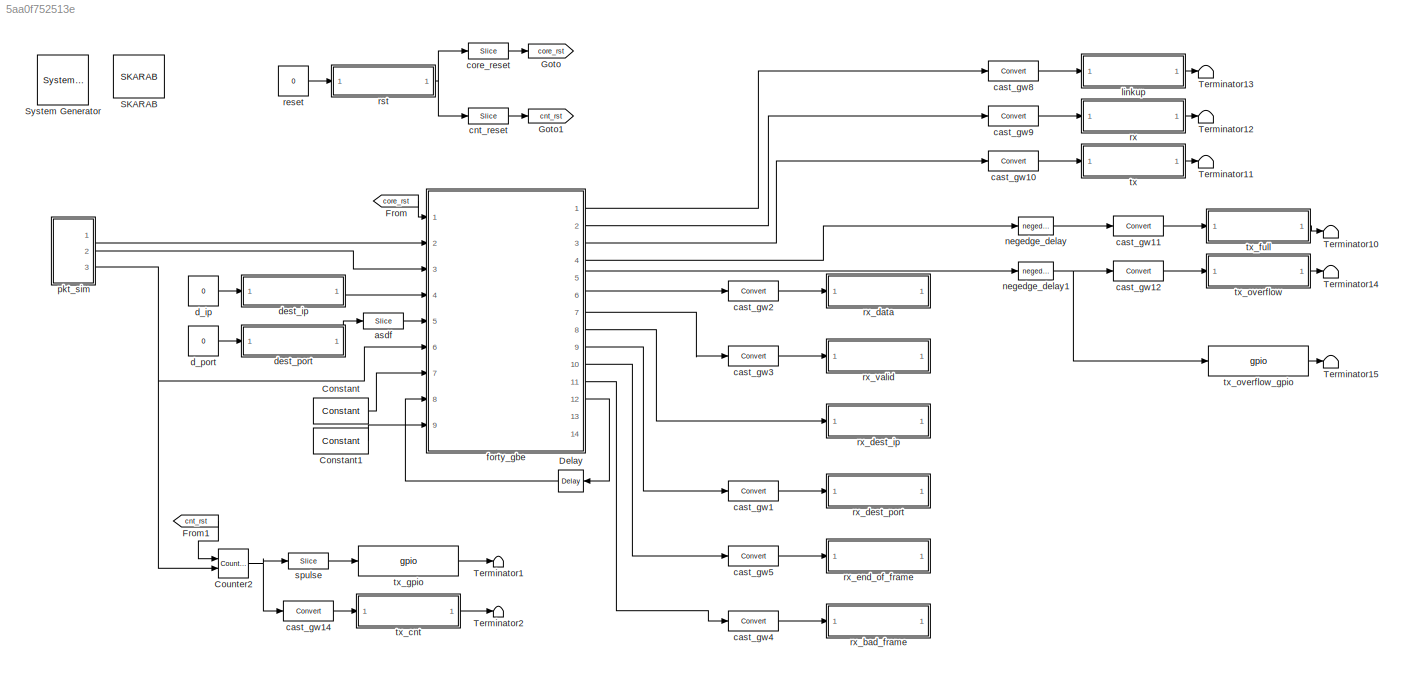
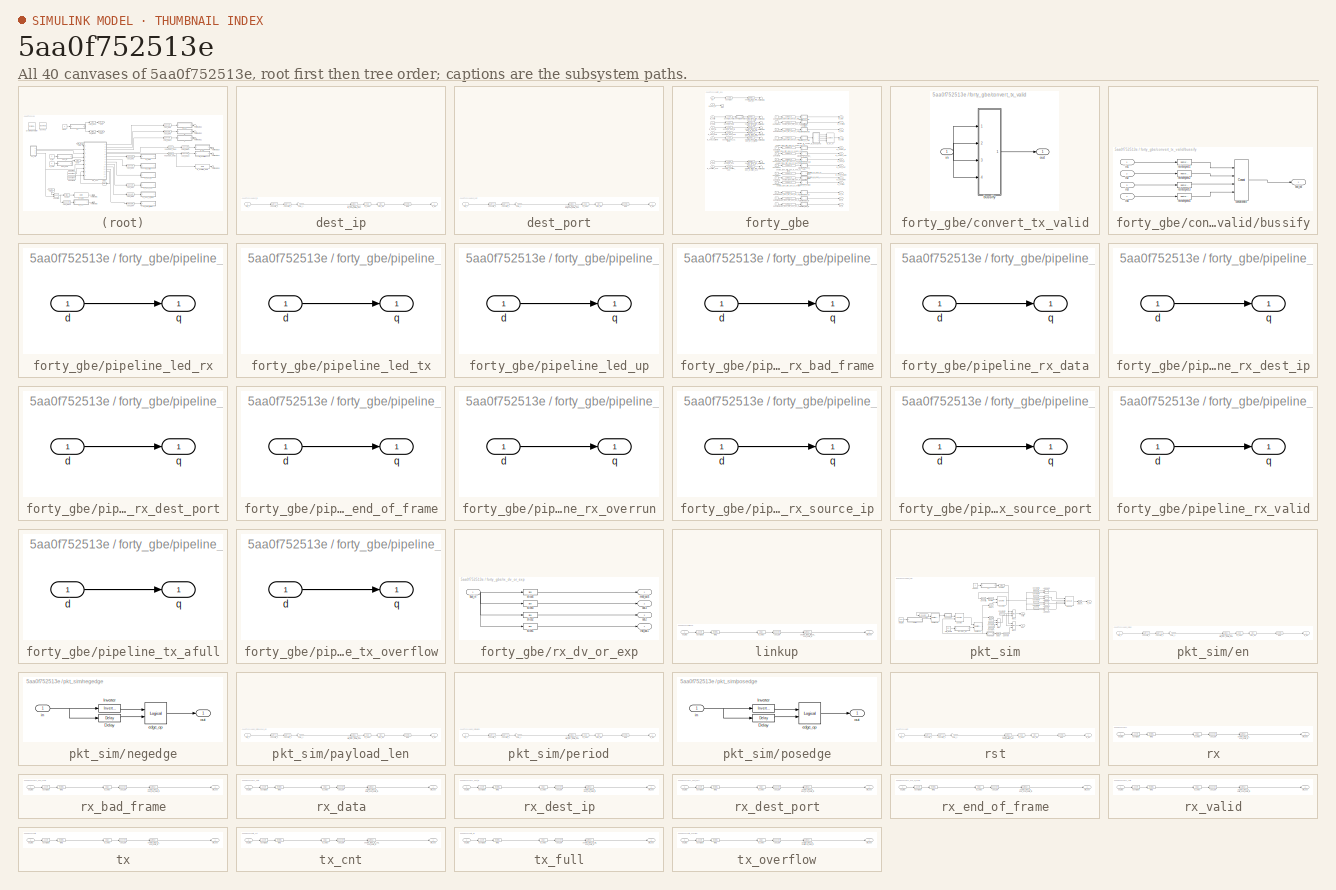
[diagram: thumbnail index - all 40 canvases of the model, root first then tree order]
MODEL slx_5aa0f752513e
KIND model
CONFIG AbsTol = auto
CONFIG EnableMultiTasking = off
CONFIG FixedStep = auto
CONFIG MaxStep = auto
CONFIG MinStep = auto
CONFIG RelTol = 1e-3
CONFIG SampleTimeConstraint = Unconstrained
CONFIG Solver = VariableStepDiscrete
CONFIG SolverName = VariableStepDiscrete
CONFIG StartTime = 0.0
CONFIG StopTime = 50000
BLOCK [Reference]  System Generator  REF=xbsIndex_r4/ System Generator
  AttributesFormatString = System\nGenerator
  Ports = []
  SourceBlock = xbsIndex_r4/ System Generator
  SourceType = Xilinx System Generator Block
  Tag = genX
  UserDataPersistent = on
BLOCK [Reference] Constant  REF=xbsIndex_r4/Constant
  Ports = [0, 1]
  SourceBlock = xbsIndex_r4/Constant
  SourceType = Xilinx Constant Block Block
BLOCK [Reference] Constant1  REF=xbsIndex_r4/Constant
  Ports = [0, 1]
  SourceBlock = xbsIndex_r4/Constant
  SourceType = Xilinx Constant Block Block
BLOCK [Reference] Counter2  REF=xbsIndex_r4/Counter
  Ports = [2, 1]
  SourceBlock = xbsIndex_r4/Counter
  SourceType = Xilinx Counter Block
BLOCK [Reference] Delay  REF=xbsIndex_r4/Delay
  Ports = [1, 1]
  SourceBlock = xbsIndex_r4/Delay
  SourceType = Xilinx Delay Block
BLOCK [From] From
  GotoTag = core_rst
BLOCK [From] From1
  GotoTag = cnt_rst
BLOCK [Goto] Goto
  GotoTag = core_rst
BLOCK [Goto] Goto1
  GotoTag = cnt_rst
BLOCK [Reference] SKARAB  REF=xps_library/Platforms/SKARAB  (lib defined in mdl_00b5cec29cd0, mdl_02ab6ecaa3d1, +5 more)
  Ports = []
  SourceBlock = xps_library/Platforms/SKARAB
  SourceProductName = CASPER XPS Blockset
  SourceType = xsg core config
  Tag = xps:xsg
BLOCK [Terminator] Terminator1
BLOCK [Terminator] Terminator10
BLOCK [Terminator] Terminator11
BLOCK [Terminator] Terminator12
BLOCK [Terminator] Terminator13
BLOCK [Terminator] Terminator14
BLOCK [Terminator] Terminator15
BLOCK [Terminator] Terminator2
BLOCK [Reference] asdf  REF=xbsIndex_r4/Slice
  Ports = [1, 1]
  SourceBlock = xbsIndex_r4/Slice
  SourceType = Xilinx Bit Slice Extractor Block
BLOCK [Reference] cast_gw1  REF=xbsIndex_r4/Convert
  Ports = [1, 1]
  SourceBlock = xbsIndex_r4/Convert
  SourceType = Xilinx Type Converter Block
BLOCK [Reference] cast_gw10  REF=xbsIndex_r4/Convert
  Ports = [1, 1]
  SourceBlock = xbsIndex_r4/Convert
  SourceType = Xilinx Type Converter Block
BLOCK [Reference] cast_gw11  REF=xbsIndex_r4/Convert
  Ports = [1, 1]
  SourceBlock = xbsIndex_r4/Convert
  SourceType = Xilinx Type Converter Block
BLOCK [Reference] cast_gw12  REF=xbsIndex_r4/Convert
  Ports = [1, 1]
  SourceBlock = xbsIndex_r4/Convert
  SourceType = Xilinx Type Converter Block
BLOCK [Reference] cast_gw14  REF=xbsIndex_r4/Convert
  Ports = [1, 1]
  SourceBlock = xbsIndex_r4/Convert
  SourceType = Xilinx Type Converter Block
BLOCK [Reference] cast_gw2  REF=xbsIndex_r4/Convert
  Ports = [1, 1]
  SourceBlock = xbsIndex_r4/Convert
  SourceType = Xilinx Type Converter Block
BLOCK [Reference] cast_gw3  REF=xbsIndex_r4/Convert
  Ports = [1, 1]
  SourceBlock = xbsIndex_r4/Convert
  SourceType = Xilinx Type Converter Block
BLOCK [Reference] cast_gw4  REF=xbsIndex_r4/Convert
  Ports = [1, 1]
  SourceBlock = xbsIndex_r4/Convert
  SourceType = Xilinx Type Converter Block
BLOCK [Reference] cast_gw5  REF=xbsIndex_r4/Convert
  Ports = [1, 1]
  SourceBlock = xbsIndex_r4/Convert
  SourceType = Xilinx Type Converter Block
BLOCK [Reference] cast_gw8  REF=xbsIndex_r4/Convert
  Ports = [1, 1]
  SourceBlock = xbsIndex_r4/Convert
  SourceType = Xilinx Type Converter Block
BLOCK [Reference] cast_gw9  REF=xbsIndex_r4/Convert
  Ports = [1, 1]
  SourceBlock = xbsIndex_r4/Convert
  SourceType = Xilinx Type Converter Block
BLOCK [Reference] cnt_reset  REF=xbsIndex_r4/Slice
  Ports = [1, 1]
  SourceBlock = xbsIndex_r4/Slice
  SourceType = Xilinx Bit Slice Extractor Block
BLOCK [Reference] core_reset  REF=xbsIndex_r4/Slice
  Ports = [1, 1]
  SourceBlock = xbsIndex_r4/Slice
  SourceType = Xilinx Bit Slice Extractor Block
BLOCK [Constant] d_ip
  Value = 0
BLOCK [Constant] d_port
  Value = 0
BLOCK [SubSystem] dest_ip
  AncestorBlock = xps_library/Memory/software_register
  AttributesFormatString = 1input:uf32.0 = 32 bits
  Ports = [1, 1]
  RequestExecContextInheritance = off
  Tag = xps:sw_reg
BLOCK [DataTypeConversion] dest_ip/convert1_1
  LockScale = on
  OutDataTypeStr = fixdt('ufix32_En0')
  RndMeth = Floor
  SaturateOnIntegerOverflow = off
BLOCK [DataTypeConversion] dest_ip/convert2_1
  ConvertRealWorld = Stored Integer (SI)
  LockScale = on
  OutDataTypeStr = fixdt('ufix32_En0')
  RndMeth = Floor
  SaturateOnIntegerOverflow = off
BLOCK [Gain] dest_ip/gain_1
  OutDataTypeStr = Inherit: Inherit via internal rule
  ParamDataTypeStr = Inherit: Inherit via internal rule
  SaturateOnIntegerOverflow = off
BLOCK [Outport] dest_ip/in_reg
  IconDisplay = Port number
BLOCK [Reference] dest_ip/io_delay  REF=xbsIndex_r4/Delay
  Ports = [1, 1]
  SourceBlock = xbsIndex_r4/Delay
  SourceType = Xilinx Delay Block
BLOCK [Reference] dest_ip/reint1  REF=xbsIndex_r4/Reinterpret
  Ports = [1, 1]
  SourceBlock = xbsIndex_r4/Reinterpret
  SourceType = Xilinx Type Reinterpreter Block
BLOCK [Inport] dest_ip/sim_1
  IconDisplay = Port number
BLOCK [Reference] dest_ip/skarab_fgbe_dest_ip_user_data_out  REF=xbsIndex_r4/Gateway In
  Ports = [1, 1]
  SourceBlock = xbsIndex_r4/Gateway In
  SourceType = Xilinx Gateway In Block
BLOCK [Reference] dest_ip/slice_reg  REF=xbsIndex_r4/Slice
  Ports = [1, 1]
  SourceBlock = xbsIndex_r4/Slice
  SourceType = Xilinx Bit Slice Extractor Block
BLOCK [SubSystem] dest_port
  AncestorBlock = xps_library/Memory/software_register
  AttributesFormatString = 1input:uf32.0 = 32 bits
  Ports = [1, 1]
  RequestExecContextInheritance = off
  Tag = xps:sw_reg
BLOCK [DataTypeConversion] dest_port/convert1_1
  LockScale = on
  OutDataTypeStr = fixdt('ufix32_En0')
  RndMeth = Floor
  SaturateOnIntegerOverflow = off
BLOCK [DataTypeConversion] dest_port/convert2_1
  ConvertRealWorld = Stored Integer (SI)
  LockScale = on
  OutDataTypeStr = fixdt('ufix32_En0')
  RndMeth = Floor
  SaturateOnIntegerOverflow = off
BLOCK [Gain] dest_port/gain_1
  OutDataTypeStr = Inherit: Inherit via internal rule
  ParamDataTypeStr = Inherit: Inherit via internal rule
  SaturateOnIntegerOverflow = off
BLOCK [Outport] dest_port/in_reg
  IconDisplay = Port number
BLOCK [Reference] dest_port/io_delay  REF=xbsIndex_r4/Delay
  Ports = [1, 1]
  SourceBlock = xbsIndex_r4/Delay
  SourceType = Xilinx Delay Block
BLOCK [Reference] dest_port/reint1  REF=xbsIndex_r4/Reinterpret
  Ports = [1, 1]
  SourceBlock = xbsIndex_r4/Reinterpret
  SourceType = Xilinx Type Reinterpreter Block
BLOCK [Inport] dest_port/sim_1
  IconDisplay = Port number
BLOCK [Reference] dest_port/skarab_fgbe_dest_port_user_data_out  REF=xbsIndex_r4/Gateway In
  Ports = [1, 1]
  SourceBlock = xbsIndex_r4/Gateway In
  SourceType = Xilinx Gateway In Block
BLOCK [Reference] dest_port/slice_reg  REF=xbsIndex_r4/Slice
  Ports = [1, 1]
  SourceBlock = xbsIndex_r4/Slice
  SourceType = Xilinx Bit Slice Extractor Block
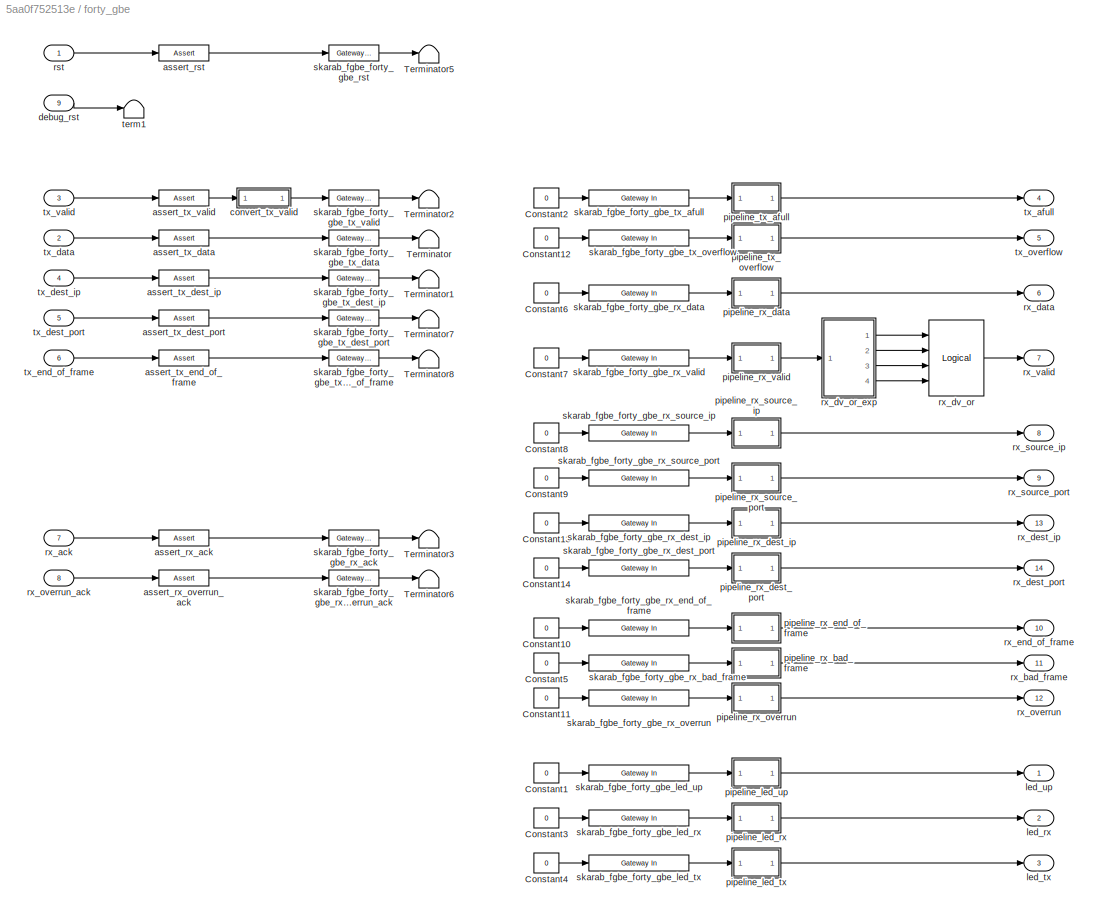
BLOCK [SubSystem] forty_gbe
  AncestorBlock = xps_library/IO/forty_gbe
  AttributesFormatString = incoming_latency=3
  Ports = [9, 14]
  RequestExecContextInheritance = off
  Tag = xps:forty_gbe
BLOCK [Constant] forty_gbe/Constant1
  Value = 0
BLOCK [Constant] forty_gbe/Constant10
  Value = 0
BLOCK [Constant] forty_gbe/Constant11
  Value = 0
BLOCK [Constant] forty_gbe/Constant12
  Value = 0
BLOCK [Constant] forty_gbe/Constant13
  Value = 0
BLOCK [Constant] forty_gbe/Constant14
  Value = 0
BLOCK [Constant] forty_gbe/Constant2
  Value = 0
BLOCK [Constant] forty_gbe/Constant3
  Value = 0
BLOCK [Constant] forty_gbe/Constant4
  Value = 0
BLOCK [Constant] forty_gbe/Constant5
  Value = 0
BLOCK [Constant] forty_gbe/Constant6
  Value = 0
BLOCK [Constant] forty_gbe/Constant7
  Value = 0
BLOCK [Constant] forty_gbe/Constant8
  Value = 0
BLOCK [Constant] forty_gbe/Constant9
  Value = 0
BLOCK [Terminator] forty_gbe/Terminator
BLOCK [Terminator] forty_gbe/Terminator1
BLOCK [Terminator] forty_gbe/Terminator2
BLOCK [Terminator] forty_gbe/Terminator3
BLOCK [Terminator] forty_gbe/Terminator5
BLOCK [Terminator] forty_gbe/Terminator6
BLOCK [Terminator] forty_gbe/Terminator7
BLOCK [Terminator] forty_gbe/Terminator8
BLOCK [Reference] forty_gbe/assert_rst  REF=xbsIndex_r4/Assert
  Ports = [1, 1]
  SourceBlock = xbsIndex_r4/Assert
  SourceType = Xilinx Assert Block
BLOCK [Reference] forty_gbe/assert_rx_ack  REF=xbsIndex_r4/Assert
  Ports = [1, 1]
  SourceBlock = xbsIndex_r4/Assert
  SourceType = Xilinx Assert Block
BLOCK [Reference] forty_gbe/assert_rx_overrun_ack  REF=xbsIndex_r4/Assert
  Ports = [1, 1]
  SourceBlock = xbsIndex_r4/Assert
  SourceType = Xilinx Assert Block
BLOCK [Reference] forty_gbe/assert_tx_data  REF=xbsIndex_r4/Assert
  Ports = [1, 1]
  SourceBlock = xbsIndex_r4/Assert
  SourceType = Xilinx Assert Block
BLOCK [Reference] forty_gbe/assert_tx_dest_ip  REF=xbsIndex_r4/Assert
  Ports = [1, 1]
  SourceBlock = xbsIndex_r4/Assert
  SourceType = Xilinx Assert Block
BLOCK [Reference] forty_gbe/assert_tx_dest_port  REF=xbsIndex_r4/Assert
  Ports = [1, 1]
  SourceBlock = xbsIndex_r4/Assert
  SourceType = Xilinx Assert Block
BLOCK [Reference] forty_gbe/assert_tx_end_of_frame  REF=xbsIndex_r4/Assert
  Ports = [1, 1]
  SourceBlock = xbsIndex_r4/Assert
  SourceType = Xilinx Assert Block
BLOCK [Reference] forty_gbe/assert_tx_valid  REF=xbsIndex_r4/Assert
  Ports = [1, 1]
  SourceBlock = xbsIndex_r4/Assert
  SourceType = Xilinx Assert Block
BLOCK [SubSystem] forty_gbe/convert_tx_valid
  AncestorBlock = casper_library_bus/bus_replicate
  Ports = [1, 1]
  RequestExecContextInheritance = off
  UserDataPersistent = on
BLOCK [SubSystem] forty_gbe/convert_tx_valid/bussify
  AncestorBlock = casper_library_flow_control/bus_create
  Ports = [4, 1]
  RequestExecContextInheritance = off
  UserDataPersistent = on
BLOCK [Outport] forty_gbe/convert_tx_valid/bussify/bus_out
  IconDisplay = Port number
BLOCK [Reference] forty_gbe/convert_tx_valid/bussify/concatenate  REF=xbsIndex_r4/Concat
  Ports = [4, 1]
  SourceBlock = xbsIndex_r4/Concat
  SourceType = Xilinx Bus Concatenator Block
BLOCK [Inport] forty_gbe/convert_tx_valid/bussify/in1
  IconDisplay = Port number
BLOCK [Inport] forty_gbe/convert_tx_valid/bussify/in2
  IconDisplay = Port number
  Port = 2
BLOCK [Inport] forty_gbe/convert_tx_valid/bussify/in3
  IconDisplay = Port number
  Port = 3
BLOCK [Inport] forty_gbe/convert_tx_valid/bussify/in4
  IconDisplay = Port number
  Port = 4
BLOCK [Reference] forty_gbe/convert_tx_valid/bussify/reinterpret1  REF=xbsIndex_r4/Reinterpret
  Ports = [1, 1]
  SourceBlock = xbsIndex_r4/Reinterpret
  SourceType = Xilinx Type Reinterpreter Block
BLOCK [Reference] forty_gbe/convert_tx_valid/bussify/reinterpret2  REF=xbsIndex_r4/Reinterpret
  Ports = [1, 1]
  SourceBlock = xbsIndex_r4/Reinterpret
  SourceType = Xilinx Type Reinterpreter Block
BLOCK [Reference] forty_gbe/convert_tx_valid/bussify/reinterpret3  REF=xbsIndex_r4/Reinterpret
  Ports = [1, 1]
  SourceBlock = xbsIndex_r4/Reinterpret
  SourceType = Xilinx Type Reinterpreter Block
BLOCK [Reference] forty_gbe/convert_tx_valid/bussify/reinterpret4  REF=xbsIndex_r4/Reinterpret
  Ports = [1, 1]
  SourceBlock = xbsIndex_r4/Reinterpret
  SourceType = Xilinx Type Reinterpreter Block
BLOCK [Inport] forty_gbe/convert_tx_valid/in
  IconDisplay = Port number
BLOCK [Outport] forty_gbe/convert_tx_valid/out
  IconDisplay = Port number
BLOCK [Inport] forty_gbe/debug_rst
  IconDisplay = Port number
  Port = 9
BLOCK [Outport] forty_gbe/led_rx
  IconDisplay = Port number
  Port = 2
BLOCK [Outport] forty_gbe/led_tx
  IconDisplay = Port number
  Port = 3
BLOCK [Outport] forty_gbe/led_up
  IconDisplay = Port number
BLOCK [SubSystem] forty_gbe/pipeline_led_rx
  AncestorBlock = casper_library_delays/pipeline
  AttributesFormatString = Latency = %<latency>
  Ports = [1, 1]
  RequestExecContextInheritance = off
  UserDataPersistent = on
BLOCK [Inport] forty_gbe/pipeline_led_rx/d
  IconDisplay = Port number
BLOCK [Outport] forty_gbe/pipeline_led_rx/q
  IconDisplay = Port number
BLOCK [SubSystem] forty_gbe/pipeline_led_tx
  AncestorBlock = casper_library_delays/pipeline
  AttributesFormatString = Latency = %<latency>
  Ports = [1, 1]
  RequestExecContextInheritance = off
  UserDataPersistent = on
BLOCK [Inport] forty_gbe/pipeline_led_tx/d
  IconDisplay = Port number
BLOCK [Outport] forty_gbe/pipeline_led_tx/q
  IconDisplay = Port number
BLOCK [SubSystem] forty_gbe/pipeline_led_up
  AncestorBlock = casper_library_delays/pipeline
  AttributesFormatString = Latency = %<latency>
  Ports = [1, 1]
  RequestExecContextInheritance = off
  UserDataPersistent = on
BLOCK [Inport] forty_gbe/pipeline_led_up/d
  IconDisplay = Port number
BLOCK [Outport] forty_gbe/pipeline_led_up/q
  IconDisplay = Port number
BLOCK [SubSystem] forty_gbe/pipeline_rx_bad_frame
  AncestorBlock = casper_library_delays/pipeline
  AttributesFormatString = Latency = %<latency>
  Ports = [1, 1]
  RequestExecContextInheritance = off
  UserDataPersistent = on
BLOCK [Inport] forty_gbe/pipeline_rx_bad_frame/d
  IconDisplay = Port number
BLOCK [Outport] forty_gbe/pipeline_rx_bad_frame/q
  IconDisplay = Port number
BLOCK [SubSystem] forty_gbe/pipeline_rx_data
  AncestorBlock = casper_library_delays/pipeline
  AttributesFormatString = Latency = %<latency>
  Ports = [1, 1]
  RequestExecContextInheritance = off
  UserDataPersistent = on
BLOCK [Inport] forty_gbe/pipeline_rx_data/d
  IconDisplay = Port number
BLOCK [Outport] forty_gbe/pipeline_rx_data/q
  IconDisplay = Port number
BLOCK [SubSystem] forty_gbe/pipeline_rx_dest_ip
  AncestorBlock = casper_library_delays/pipeline
  AttributesFormatString = Latency = %<latency>
  Ports = [1, 1]
  RequestExecContextInheritance = off
  UserDataPersistent = on
BLOCK [Inport] forty_gbe/pipeline_rx_dest_ip/d
  IconDisplay = Port number
BLOCK [Outport] forty_gbe/pipeline_rx_dest_ip/q
  IconDisplay = Port number
BLOCK [SubSystem] forty_gbe/pipeline_rx_dest_port
  AncestorBlock = casper_library_delays/pipeline
  AttributesFormatString = Latency = %<latency>
  Ports = [1, 1]
  RequestExecContextInheritance = off
  UserDataPersistent = on
BLOCK [Inport] forty_gbe/pipeline_rx_dest_port/d
  IconDisplay = Port number
BLOCK [Outport] forty_gbe/pipeline_rx_dest_port/q
  IconDisplay = Port number
BLOCK [SubSystem] forty_gbe/pipeline_rx_end_of_frame
  AncestorBlock = casper_library_delays/pipeline
  AttributesFormatString = Latency = %<latency>
  Ports = [1, 1]
  RequestExecContextInheritance = off
  UserDataPersistent = on
BLOCK [Inport] forty_gbe/pipeline_rx_end_of_frame/d
  IconDisplay = Port number
BLOCK [Outport] forty_gbe/pipeline_rx_end_of_frame/q
  IconDisplay = Port number
BLOCK [SubSystem] forty_gbe/pipeline_rx_overrun
  AncestorBlock = casper_library_delays/pipeline
  AttributesFormatString = Latency = %<latency>
  Ports = [1, 1]
  RequestExecContextInheritance = off
  UserDataPersistent = on
BLOCK [Inport] forty_gbe/pipeline_rx_overrun/d
  IconDisplay = Port number
BLOCK [Outport] forty_gbe/pipeline_rx_overrun/q
  IconDisplay = Port number
BLOCK [SubSystem] forty_gbe/pipeline_rx_source_ip
  AncestorBlock = casper_library_delays/pipeline
  AttributesFormatString = Latency = %<latency>
  Ports = [1, 1]
  RequestExecContextInheritance = off
  UserDataPersistent = on
BLOCK [Inport] forty_gbe/pipeline_rx_source_ip/d
  IconDisplay = Port number
BLOCK [Outport] forty_gbe/pipeline_rx_source_ip/q
  IconDisplay = Port number
BLOCK [SubSystem] forty_gbe/pipeline_rx_source_port
  AncestorBlock = casper_library_delays/pipeline
  AttributesFormatString = Latency = %<latency>
  Ports = [1, 1]
  RequestExecContextInheritance = off
  UserDataPersistent = on
BLOCK [Inport] forty_gbe/pipeline_rx_source_port/d
  IconDisplay = Port number
BLOCK [Outport] forty_gbe/pipeline_rx_source_port/q
  IconDisplay = Port number
BLOCK [SubSystem] forty_gbe/pipeline_rx_valid
  AncestorBlock = casper_library_delays/pipeline
  AttributesFormatString = Latency = %<latency>
  Ports = [1, 1]
  RequestExecContextInheritance = off
  UserDataPersistent = on
BLOCK [Inport] forty_gbe/pipeline_rx_valid/d
  IconDisplay = Port number
BLOCK [Outport] forty_gbe/pipeline_rx_valid/q
  IconDisplay = Port number
BLOCK [SubSystem] forty_gbe/pipeline_tx_afull
  AncestorBlock = casper_library_delays/pipeline
  AttributesFormatString = Latency = %<latency>
  Ports = [1, 1]
  RequestExecContextInheritance = off
  UserDataPersistent = on
BLOCK [Inport] forty_gbe/pipeline_tx_afull/d
  IconDisplay = Port number
BLOCK [Outport] forty_gbe/pipeline_tx_afull/q
  IconDisplay = Port number
BLOCK [SubSystem] forty_gbe/pipeline_tx_overflow
  AncestorBlock = casper_library_delays/pipeline
  AttributesFormatString = Latency = %<latency>
  Ports = [1, 1]
  RequestExecContextInheritance = off
  UserDataPersistent = on
BLOCK [Inport] forty_gbe/pipeline_tx_overflow/d
  IconDisplay = Port number
BLOCK [Outport] forty_gbe/pipeline_tx_overflow/q
  IconDisplay = Port number
BLOCK [Inport] forty_gbe/rst
  IconDisplay = Port number
BLOCK [Inport] forty_gbe/rx_ack
  IconDisplay = Port number
  Port = 7
BLOCK [Outport] forty_gbe/rx_bad_frame
  IconDisplay = Port number
  Port = 11
BLOCK [Outport] forty_gbe/rx_data
  IconDisplay = Port number
  Port = 6
BLOCK [Outport] forty_gbe/rx_dest_ip
  IconDisplay = Port number
  Port = 13
BLOCK [Outport] forty_gbe/rx_dest_port
  IconDisplay = Port number
  Port = 14
BLOCK [Reference] forty_gbe/rx_dv_or  REF=xbsIndex_r4/Logical
  Ports = [4, 1]
  SourceBlock = xbsIndex_r4/Logical
  SourceType = Xilinx Logical Block Block
BLOCK [SubSystem] forty_gbe/rx_dv_or_exp
  AncestorBlock = casper_library_flow_control/bus_expand
  AttributesFormatString = 4 outputs
  Ports = [1, 4]
  RequestExecContextInheritance = off
  UserDataPersistent = on
BLOCK [Inport] forty_gbe/rx_dv_or_exp/bus_in
  IconDisplay = Port number
BLOCK [Outport] forty_gbe/rx_dv_or_exp/lsb_out1
  IconDisplay = Port number
  Port = 4
BLOCK [Outport] forty_gbe/rx_dv_or_exp/msb_out4
  IconDisplay = Port number
BLOCK [Outport] forty_gbe/rx_dv_or_exp/out2
  IconDisplay = Port number
  Port = 3
BLOCK [Outport] forty_gbe/rx_dv_or_exp/out3
  IconDisplay = Port number
  Port = 2
BLOCK [Reference] forty_gbe/rx_dv_or_exp/slice1  REF=xbsIndex_r4/Slice
  Ports = [1, 1]
  SourceBlock = xbsIndex_r4/Slice
  SourceType = Xilinx Bit Slice Extractor Block
BLOCK [Reference] forty_gbe/rx_dv_or_exp/slice2  REF=xbsIndex_r4/Slice
  Ports = [1, 1]
  SourceBlock = xbsIndex_r4/Slice
  SourceType = Xilinx Bit Slice Extractor Block
BLOCK [Reference] forty_gbe/rx_dv_or_exp/slice3  REF=xbsIndex_r4/Slice
  Ports = [1, 1]
  SourceBlock = xbsIndex_r4/Slice
  SourceType = Xilinx Bit Slice Extractor Block
BLOCK [Reference] forty_gbe/rx_dv_or_exp/slice4  REF=xbsIndex_r4/Slice
  Ports = [1, 1]
  SourceBlock = xbsIndex_r4/Slice
  SourceType = Xilinx Bit Slice Extractor Block
BLOCK [Outport] forty_gbe/rx_end_of_frame
  IconDisplay = Port number
  Port = 10
BLOCK [Outport] forty_gbe/rx_overrun
  IconDisplay = Port number
  Port = 12
BLOCK [Inport] forty_gbe/rx_overrun_ack
  IconDisplay = Port number
  Port = 8
BLOCK [Outport] forty_gbe/rx_source_ip
  IconDisplay = Port number
  Port = 8
BLOCK [Outport] forty_gbe/rx_source_port
  IconDisplay = Port number
  Port = 9
BLOCK [Outport] forty_gbe/rx_valid
  IconDisplay = Port number
  Port = 7
BLOCK [Reference] forty_gbe/skarab_fgbe_forty_gbe_led_rx  REF=xbsIndex_r4/Gateway In
  Ports = [1, 1]
  SourceBlock = xbsIndex_r4/Gateway In
  SourceType = Xilinx Gateway In Block
BLOCK [Reference] forty_gbe/skarab_fgbe_forty_gbe_led_tx  REF=xbsIndex_r4/Gateway In
  Ports = [1, 1]
  SourceBlock = xbsIndex_r4/Gateway In
  SourceType = Xilinx Gateway In Block
BLOCK [Reference] forty_gbe/skarab_fgbe_forty_gbe_led_up  REF=xbsIndex_r4/Gateway In
  Ports = [1, 1]
  SourceBlock = xbsIndex_r4/Gateway In
  SourceType = Xilinx Gateway In Block
BLOCK [Reference] forty_gbe/skarab_fgbe_forty_gbe_rst  REF=xbsIndex_r4/Gateway Out
  Ports = [1, 1]
  SourceBlock = xbsIndex_r4/Gateway Out
  SourceType = Xilinx Gateway Out Block
BLOCK [Reference] forty_gbe/skarab_fgbe_forty_gbe_rx_ack  REF=xbsIndex_r4/Gateway Out
  Ports = [1, 1]
  SourceBlock = xbsIndex_r4/Gateway Out
  SourceType = Xilinx Gateway Out Block
BLOCK [Reference] forty_gbe/skarab_fgbe_forty_gbe_rx_bad_frame  REF=xbsIndex_r4/Gateway In
  Ports = [1, 1]
  SourceBlock = xbsIndex_r4/Gateway In
  SourceType = Xilinx Gateway In Block
BLOCK [Reference] forty_gbe/skarab_fgbe_forty_gbe_rx_data  REF=xbsIndex_r4/Gateway In
  Ports = [1, 1]
  SourceBlock = xbsIndex_r4/Gateway In
  SourceType = Xilinx Gateway In Block
BLOCK [Reference] forty_gbe/skarab_fgbe_forty_gbe_rx_dest_ip  REF=xbsIndex_r4/Gateway In
  Ports = [1, 1]
  SourceBlock = xbsIndex_r4/Gateway In
  SourceType = Xilinx Gateway In Block
BLOCK [Reference] forty_gbe/skarab_fgbe_forty_gbe_rx_dest_port  REF=xbsIndex_r4/Gateway In
  Ports = [1, 1]
  SourceBlock = xbsIndex_r4/Gateway In
  SourceType = Xilinx Gateway In Block
BLOCK [Reference] forty_gbe/skarab_fgbe_forty_gbe_rx_end_of_frame  REF=xbsIndex_r4/Gateway In
  Ports = [1, 1]
  SourceBlock = xbsIndex_r4/Gateway In
  SourceType = Xilinx Gateway In Block
BLOCK [Reference] forty_gbe/skarab_fgbe_forty_gbe_rx_overrun  REF=xbsIndex_r4/Gateway In
  Ports = [1, 1]
  SourceBlock = xbsIndex_r4/Gateway In
  SourceType = Xilinx Gateway In Block
BLOCK [Reference] forty_gbe/skarab_fgbe_forty_gbe_rx_overrun_ack  REF=xbsIndex_r4/Gateway Out
  Ports = [1, 1]
  SourceBlock = xbsIndex_r4/Gateway Out
  SourceType = Xilinx Gateway Out Block
BLOCK [Reference] forty_gbe/skarab_fgbe_forty_gbe_rx_source_ip  REF=xbsIndex_r4/Gateway In
  Ports = [1, 1]
  SourceBlock = xbsIndex_r4/Gateway In
  SourceType = Xilinx Gateway In Block
BLOCK [Reference] forty_gbe/skarab_fgbe_forty_gbe_rx_source_port  REF=xbsIndex_r4/Gateway In
  Ports = [1, 1]
  SourceBlock = xbsIndex_r4/Gateway In
  SourceType = Xilinx Gateway In Block
BLOCK [Reference] forty_gbe/skarab_fgbe_forty_gbe_rx_valid  REF=xbsIndex_r4/Gateway In
  Ports = [1, 1]
  SourceBlock = xbsIndex_r4/Gateway In
  SourceType = Xilinx Gateway In Block
BLOCK [Reference] forty_gbe/skarab_fgbe_forty_gbe_tx_afull  REF=xbsIndex_r4/Gateway In
  Ports = [1, 1]
  SourceBlock = xbsIndex_r4/Gateway In
  SourceType = Xilinx Gateway In Block
BLOCK [Reference] forty_gbe/skarab_fgbe_forty_gbe_tx_data  REF=xbsIndex_r4/Gateway Out
  Ports = [1, 1]
  SourceBlock = xbsIndex_r4/Gateway Out
  SourceType = Xilinx Gateway Out Block
BLOCK [Reference] forty_gbe/skarab_fgbe_forty_gbe_tx_dest_ip  REF=xbsIndex_r4/Gateway Out
  Ports = [1, 1]
  SourceBlock = xbsIndex_r4/Gateway Out
  SourceType = Xilinx Gateway Out Block
BLOCK [Reference] forty_gbe/skarab_fgbe_forty_gbe_tx_dest_port  REF=xbsIndex_r4/Gateway Out
  Ports = [1, 1]
  SourceBlock = xbsIndex_r4/Gateway Out
  SourceType = Xilinx Gateway Out Block
BLOCK [Reference] forty_gbe/skarab_fgbe_forty_gbe_tx_end_of_frame  REF=xbsIndex_r4/Gateway Out
  Ports = [1, 1]
  SourceBlock = xbsIndex_r4/Gateway Out
  SourceType = Xilinx Gateway Out Block
BLOCK [Reference] forty_gbe/skarab_fgbe_forty_gbe_tx_overflow  REF=xbsIndex_r4/Gateway In
  Ports = [1, 1]
  SourceBlock = xbsIndex_r4/Gateway In
  SourceType = Xilinx Gateway In Block
BLOCK [Reference] forty_gbe/skarab_fgbe_forty_gbe_tx_valid  REF=xbsIndex_r4/Gateway Out
  Ports = [1, 1]
  SourceBlock = xbsIndex_r4/Gateway Out
  SourceType = Xilinx Gateway Out Block
BLOCK [Terminator] forty_gbe/term1
BLOCK [Outport] forty_gbe/tx_afull
  IconDisplay = Port number
  Port = 4
BLOCK [Inport] forty_gbe/tx_data
  IconDisplay = Port number
  Port = 2
BLOCK [Inport] forty_gbe/tx_dest_ip
  IconDisplay = Port number
  Port = 4
BLOCK [Inport] forty_gbe/tx_dest_port
  IconDisplay = Port number
  Port = 5
BLOCK [Inport] forty_gbe/tx_end_of_frame
  IconDisplay = Port number
  Port = 6
BLOCK [Outport] forty_gbe/tx_overflow
  IconDisplay = Port number
  Port = 5
BLOCK [Inport] forty_gbe/tx_valid
  IconDisplay = Port number
  Port = 3
BLOCK [SubSystem] linkup
  AncestorBlock = xps_library/Memory/software_register
  AttributesFormatString = 1output:uf32.0 = 32 bits
  Ports = [1, 1]
  RequestExecContextInheritance = off
  Tag = xps:sw_reg
BLOCK [Reference] linkup/assert_reg  REF=xbsIndex_r4/Assert
  Ports = [1, 1]
  SourceBlock = xbsIndex_r4/Assert
  SourceType = Xilinx Assert Block
BLOCK [Reference] linkup/cast_gw  REF=xbsIndex_r4/Convert
  Ports = [1, 1]
  SourceBlock = xbsIndex_r4/Convert
  SourceType = Xilinx Type Converter Block
BLOCK [Reference] linkup/io_delay  REF=xbsIndex_r4/Delay
  Ports = [1, 1]
  SourceBlock = xbsIndex_r4/Delay
  SourceType = Xilinx Delay Block
BLOCK [Inport] linkup/out_reg
  IconDisplay = Port number
BLOCK [Reference] linkup/reint1  REF=xbsIndex_r4/Reinterpret
  Ports = [1, 1]
  SourceBlock = xbsIndex_r4/Reinterpret
  SourceType = Xilinx Type Reinterpreter Block
BLOCK [Outport] linkup/sim_out
  IconDisplay = Port number
BLOCK [Reference] linkup/skarab_fgbe_linkup_user_data_in  REF=xbsIndex_r4/Gateway Out
  Ports = [1, 1]
  SourceBlock = xbsIndex_r4/Gateway Out
  SourceType = Xilinx Gateway Out Block
BLOCK [Reference] negedge_delay  REF=casper_library_misc/negedge_delay  (lib defined in mdl_357510c33b49, mdl_57b5f564ae26, +4 more)
  Ports = [1, 1]
  SourceBlock = casper_library_misc/negedge_delay
  SourceProductName = CASPER DSP Blockset
  SourceType = negedge_delay
BLOCK [Reference] negedge_delay1  REF=casper_library_misc/negedge_delay  (lib defined in mdl_357510c33b49, mdl_57b5f564ae26, +4 more)
  Ports = [1, 1]
  SourceBlock = casper_library_misc/negedge_delay
  SourceProductName = CASPER DSP Blockset
  SourceType = negedge_delay
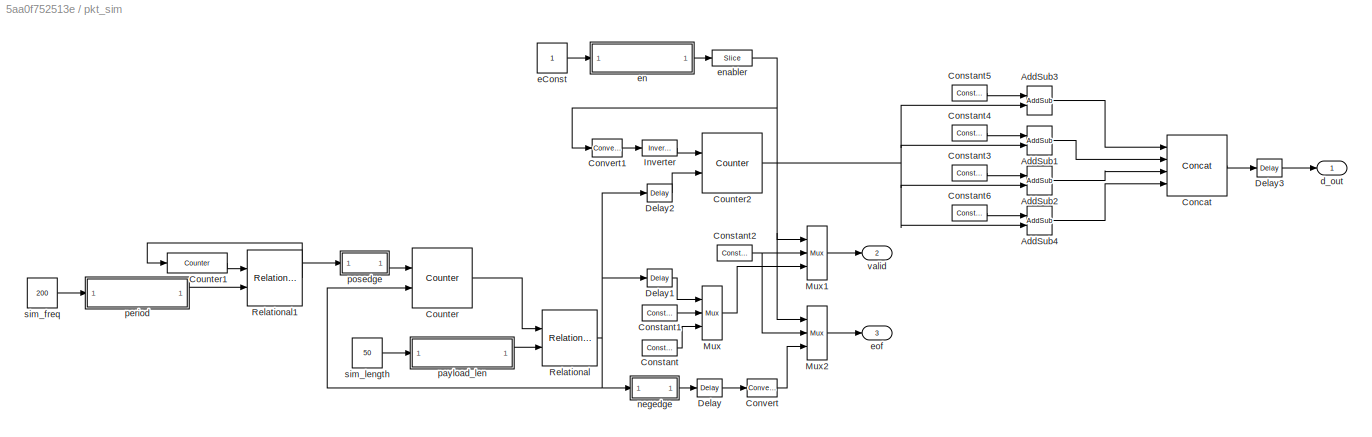
BLOCK [SubSystem] pkt_sim
  Ports = [0, 3]
  RequestExecContextInheritance = off
BLOCK [Reference] pkt_sim/AddSub1  REF=xbsIndex_r4/AddSub
  Ports = [2, 1]
  SourceBlock = xbsIndex_r4/AddSub
  SourceType = Xilinx Adder/Subtracter Block
BLOCK [Reference] pkt_sim/AddSub2  REF=xbsIndex_r4/AddSub
  Ports = [2, 1]
  SourceBlock = xbsIndex_r4/AddSub
  SourceType = Xilinx Adder/Subtracter Block
BLOCK [Reference] pkt_sim/AddSub3  REF=xbsIndex_r4/AddSub
  Ports = [2, 1]
  SourceBlock = xbsIndex_r4/AddSub
  SourceType = Xilinx Adder/Subtracter Block
BLOCK [Reference] pkt_sim/AddSub4  REF=xbsIndex_r4/AddSub
  Ports = [2, 1]
  SourceBlock = xbsIndex_r4/AddSub
  SourceType = Xilinx Adder/Subtracter Block
BLOCK [Reference] pkt_sim/Concat  REF=xbsIndex_r4/Concat
  Ports = [4, 1]
  SourceBlock = xbsIndex_r4/Concat
  SourceType = Xilinx Bus Concatenator Block
BLOCK [Reference] pkt_sim/Constant  REF=xbsIndex_r4/Constant
  Ports = [0, 1]
  SourceBlock = xbsIndex_r4/Constant
  SourceType = Xilinx Constant Block Block
BLOCK [Reference] pkt_sim/Constant1  REF=xbsIndex_r4/Constant
  Ports = [0, 1]
  SourceBlock = xbsIndex_r4/Constant
  SourceType = Xilinx Constant Block Block
BLOCK [Reference] pkt_sim/Constant2  REF=xbsIndex_r4/Constant
  Ports = [0, 1]
  SourceBlock = xbsIndex_r4/Constant
  SourceType = Xilinx Constant Block Block
BLOCK [Reference] pkt_sim/Constant3  REF=xbsIndex_r4/Constant
  Ports = [0, 1]
  SourceBlock = xbsIndex_r4/Constant
  SourceType = Xilinx Constant Block Block
BLOCK [Reference] pkt_sim/Constant4  REF=xbsIndex_r4/Constant
  Ports = [0, 1]
  SourceBlock = xbsIndex_r4/Constant
  SourceType = Xilinx Constant Block Block
BLOCK [Reference] pkt_sim/Constant5  REF=xbsIndex_r4/Constant
  Ports = [0, 1]
  SourceBlock = xbsIndex_r4/Constant
  SourceType = Xilinx Constant Block Block
BLOCK [Reference] pkt_sim/Constant6  REF=xbsIndex_r4/Constant
  Ports = [0, 1]
  SourceBlock = xbsIndex_r4/Constant
  SourceType = Xilinx Constant Block Block
BLOCK [Reference] pkt_sim/Convert  REF=xbsIndex_r4/Convert
  Ports = [1, 1]
  SourceBlock = xbsIndex_r4/Convert
  SourceType = Xilinx Type Converter Block
BLOCK [Reference] pkt_sim/Convert1  REF=xbsIndex_r4/Convert
  Ports = [1, 1]
  SourceBlock = xbsIndex_r4/Convert
  SourceType = Xilinx Type Converter Block
BLOCK [Reference] pkt_sim/Counter  REF=xbsIndex_r4/Counter
  Ports = [2, 1]
  SourceBlock = xbsIndex_r4/Counter
  SourceType = Xilinx Counter Block
BLOCK [Reference] pkt_sim/Counter1  REF=xbsIndex_r4/Counter
  Ports = [1, 1]
  SourceBlock = xbsIndex_r4/Counter
  SourceType = Xilinx Counter Block
BLOCK [Reference] pkt_sim/Counter2  REF=xbsIndex_r4/Counter
  Ports = [2, 1]
  SourceBlock = xbsIndex_r4/Counter
  SourceType = Xilinx Counter Block
BLOCK [Reference] pkt_sim/Delay  REF=xbsIndex_r4/Delay
  Ports = [1, 1]
  SourceBlock = xbsIndex_r4/Delay
  SourceType = Xilinx Delay Block
BLOCK [Reference] pkt_sim/Delay1  REF=xbsIndex_r4/Delay
  Ports = [1, 1]
  SourceBlock = xbsIndex_r4/Delay
  SourceType = Xilinx Delay Block
BLOCK [Reference] pkt_sim/Delay2  REF=xbsIndex_r4/Delay
  Ports = [1, 1]
  SourceBlock = xbsIndex_r4/Delay
  SourceType = Xilinx Delay Block
BLOCK [Reference] pkt_sim/Delay3  REF=xbsIndex_r4/Delay
  Ports = [1, 1]
  SourceBlock = xbsIndex_r4/Delay
  SourceType = Xilinx Delay Block
BLOCK [Reference] pkt_sim/Inverter  REF=xbsIndex_r4/Inverter
  Ports = [1, 1]
  SourceBlock = xbsIndex_r4/Inverter
  SourceType = Xilinx Inverter Block
BLOCK [Reference] pkt_sim/Mux  REF=xbsIndex_r4/Mux
  Ports = [3, 1]
  SourceBlock = xbsIndex_r4/Mux
  SourceType = Xilinx Bus Multiplexer Block
BLOCK [Reference] pkt_sim/Mux1  REF=xbsIndex_r4/Mux
  Ports = [3, 1]
  SourceBlock = xbsIndex_r4/Mux
  SourceType = Xilinx Bus Multiplexer Block
BLOCK [Reference] pkt_sim/Mux2  REF=xbsIndex_r4/Mux
  Ports = [3, 1]
  SourceBlock = xbsIndex_r4/Mux
  SourceType = Xilinx Bus Multiplexer Block
BLOCK [Reference] pkt_sim/Relational  REF=xbsIndex_r4/Relational
  Ports = [2, 1]
  SourceBlock = xbsIndex_r4/Relational
  SourceType = Xilinx Arithmetic Relational Operator Block
BLOCK [Reference] pkt_sim/Relational1  REF=xbsIndex_r4/Relational
  Ports = [2, 1]
  SourceBlock = xbsIndex_r4/Relational
  SourceType = Xilinx Arithmetic Relational Operator Block
BLOCK [Outport] pkt_sim/d_out
  IconDisplay = Port number
BLOCK [Constant] pkt_sim/eConst
BLOCK [SubSystem] pkt_sim/en
  AncestorBlock = xps_library/Memory/software_register
  AttributesFormatString = 1input:uf32.0 = 32 bits
  Ports = [1, 1]
  RequestExecContextInheritance = off
  Tag = xps:sw_reg
BLOCK [DataTypeConversion] pkt_sim/en/convert1_1
  LockScale = on
  OutDataTypeStr = fixdt('ufix32_En0')
  RndMeth = Floor
  SaturateOnIntegerOverflow = off
BLOCK [DataTypeConversion] pkt_sim/en/convert2_1
  ConvertRealWorld = Stored Integer (SI)
  LockScale = on
  OutDataTypeStr = fixdt('ufix32_En0')
  RndMeth = Floor
  SaturateOnIntegerOverflow = off
BLOCK [Gain] pkt_sim/en/gain_1
  OutDataTypeStr = Inherit: Inherit via internal rule
  ParamDataTypeStr = Inherit: Inherit via internal rule
  SaturateOnIntegerOverflow = off
BLOCK [Outport] pkt_sim/en/in_reg
  IconDisplay = Port number
BLOCK [Reference] pkt_sim/en/io_delay  REF=xbsIndex_r4/Delay
  Ports = [1, 1]
  SourceBlock = xbsIndex_r4/Delay
  SourceType = Xilinx Delay Block
BLOCK [Reference] pkt_sim/en/reint1  REF=xbsIndex_r4/Reinterpret
  Ports = [1, 1]
  SourceBlock = xbsIndex_r4/Reinterpret
  SourceType = Xilinx Type Reinterpreter Block
BLOCK [Inport] pkt_sim/en/sim_1
  IconDisplay = Port number
BLOCK [Reference] pkt_sim/en/skarab_fgbe_pkt_sim_en_user_data_out  REF=xbsIndex_r4/Gateway In
  Ports = [1, 1]
  SourceBlock = xbsIndex_r4/Gateway In
  SourceType = Xilinx Gateway In Block
BLOCK [Reference] pkt_sim/en/slice_reg  REF=xbsIndex_r4/Slice
  Ports = [1, 1]
  SourceBlock = xbsIndex_r4/Slice
  SourceType = Xilinx Bit Slice Extractor Block
BLOCK [Reference] pkt_sim/enabler  REF=xbsIndex_r4/Slice
  Ports = [1, 1]
  SourceBlock = xbsIndex_r4/Slice
  SourceType = Xilinx Bit Slice Extractor Block
BLOCK [Outport] pkt_sim/eof
  IconDisplay = Port number
  Port = 3
BLOCK [SubSystem] pkt_sim/negedge
  AncestorBlock = casper_library_misc/edge_detect
  AttributesFormatString = falling edges\nactive high
  Ports = [1, 1]
  RequestExecContextInheritance = off
  UserDataPersistent = on
BLOCK [Reference] pkt_sim/negedge/Delay  REF=xbsIndex_r4/Delay
  Ports = [1, 1]
  SourceBlock = xbsIndex_r4/Delay
  SourceType = Xilinx Delay Block
BLOCK [Reference] pkt_sim/negedge/Inverter  REF=xbsIndex_r4/Inverter
  Ports = [1, 1]
  SourceBlock = xbsIndex_r4/Inverter
  SourceType = Xilinx Inverter Block
BLOCK [Reference] pkt_sim/negedge/edge_op  REF=xbsIndex_r4/Logical
  Ports = [2, 1]
  SourceBlock = xbsIndex_r4/Logical
  SourceType = Xilinx Logical Block Block
BLOCK [Inport] pkt_sim/negedge/in
  IconDisplay = Port number
BLOCK [Outport] pkt_sim/negedge/out
  IconDisplay = Port number
BLOCK [SubSystem] pkt_sim/payload_len
  AncestorBlock = xps_library/Memory/software_register
  AttributesFormatString = 1input:uf32.0 = 32 bits
  Ports = [1, 1]
  RequestExecContextInheritance = off
  Tag = xps:sw_reg
BLOCK [DataTypeConversion] pkt_sim/payload_len/convert1_1
  LockScale = on
  OutDataTypeStr = fixdt('ufix32_En0')
  RndMeth = Floor
  SaturateOnIntegerOverflow = off
BLOCK [DataTypeConversion] pkt_sim/payload_len/convert2_1
  ConvertRealWorld = Stored Integer (SI)
  LockScale = on
  OutDataTypeStr = fixdt('ufix32_En0')
  RndMeth = Floor
  SaturateOnIntegerOverflow = off
BLOCK [Gain] pkt_sim/payload_len/gain_1
  OutDataTypeStr = Inherit: Inherit via internal rule
  ParamDataTypeStr = Inherit: Inherit via internal rule
  SaturateOnIntegerOverflow = off
BLOCK [Outport] pkt_sim/payload_len/in_reg
  IconDisplay = Port number
BLOCK [Reference] pkt_sim/payload_len/io_delay  REF=xbsIndex_r4/Delay
  Ports = [1, 1]
  SourceBlock = xbsIndex_r4/Delay
  SourceType = Xilinx Delay Block
BLOCK [Reference] pkt_sim/payload_len/reint1  REF=xbsIndex_r4/Reinterpret
  Ports = [1, 1]
  SourceBlock = xbsIndex_r4/Reinterpret
  SourceType = Xilinx Type Reinterpreter Block
BLOCK [Inport] pkt_sim/payload_len/sim_1
  IconDisplay = Port number
BLOCK [Reference] pkt_sim/payload_len/skarab_fgbe_pkt_sim_payload_len_user_data_out  REF=xbsIndex_r4/Gateway In
  Ports = [1, 1]
  SourceBlock = xbsIndex_r4/Gateway In
  SourceType = Xilinx Gateway In Block
BLOCK [Reference] pkt_sim/payload_len/slice_reg  REF=xbsIndex_r4/Slice
  Ports = [1, 1]
  SourceBlock = xbsIndex_r4/Slice
  SourceType = Xilinx Bit Slice Extractor Block
BLOCK [SubSystem] pkt_sim/period
  AncestorBlock = xps_library/Memory/software_register
  AttributesFormatString = 1input:uf32.0 = 32 bits
  Ports = [1, 1]
  RequestExecContextInheritance = off
  Tag = xps:sw_reg
BLOCK [DataTypeConversion] pkt_sim/period/convert1_1
  LockScale = on
  OutDataTypeStr = fixdt('ufix32_En0')
  RndMeth = Floor
  SaturateOnIntegerOverflow = off
BLOCK [DataTypeConversion] pkt_sim/period/convert2_1
  ConvertRealWorld = Stored Integer (SI)
  LockScale = on
  OutDataTypeStr = fixdt('ufix32_En0')
  RndMeth = Floor
  SaturateOnIntegerOverflow = off
BLOCK [Gain] pkt_sim/period/gain_1
  OutDataTypeStr = Inherit: Inherit via internal rule
  ParamDataTypeStr = Inherit: Inherit via internal rule
  SaturateOnIntegerOverflow = off
BLOCK [Outport] pkt_sim/period/in_reg
  IconDisplay = Port number
BLOCK [Reference] pkt_sim/period/io_delay  REF=xbsIndex_r4/Delay
  Ports = [1, 1]
  SourceBlock = xbsIndex_r4/Delay
  SourceType = Xilinx Delay Block
BLOCK [Reference] pkt_sim/period/reint1  REF=xbsIndex_r4/Reinterpret
  Ports = [1, 1]
  SourceBlock = xbsIndex_r4/Reinterpret
  SourceType = Xilinx Type Reinterpreter Block
BLOCK [Inport] pkt_sim/period/sim_1
  IconDisplay = Port number
BLOCK [Reference] pkt_sim/period/skarab_fgbe_pkt_sim_period_user_data_out  REF=xbsIndex_r4/Gateway In
  Ports = [1, 1]
  SourceBlock = xbsIndex_r4/Gateway In
  SourceType = Xilinx Gateway In Block
BLOCK [Reference] pkt_sim/period/slice_reg  REF=xbsIndex_r4/Slice
  Ports = [1, 1]
  SourceBlock = xbsIndex_r4/Slice
  SourceType = Xilinx Bit Slice Extractor Block
BLOCK [SubSystem] pkt_sim/posedge
  AncestorBlock = casper_library_misc/edge_detect
  AttributesFormatString = rising edges\nactive high
  Ports = [1, 1]
  RequestExecContextInheritance = off
  UserDataPersistent = on
BLOCK [Reference] pkt_sim/posedge/Delay  REF=xbsIndex_r4/Delay
  Ports = [1, 1]
  SourceBlock = xbsIndex_r4/Delay
  SourceType = Xilinx Delay Block
BLOCK [Reference] pkt_sim/posedge/Inverter  REF=xbsIndex_r4/Inverter
  Ports = [1, 1]
  SourceBlock = xbsIndex_r4/Inverter
  SourceType = Xilinx Inverter Block
BLOCK [Reference] pkt_sim/posedge/edge_op  REF=xbsIndex_r4/Logical
  Ports = [2, 1]
  SourceBlock = xbsIndex_r4/Logical
  SourceType = Xilinx Logical Block Block
BLOCK [Inport] pkt_sim/posedge/in
  IconDisplay = Port number
BLOCK [Outport] pkt_sim/posedge/out
  IconDisplay = Port number
BLOCK [Constant] pkt_sim/sim_freq
  Value = 200
BLOCK [Constant] pkt_sim/sim_length
  Value = 50
BLOCK [Outport] pkt_sim/valid
  IconDisplay = Port number
  Port = 2
BLOCK [Constant] reset
  Value = 0
BLOCK [SubSystem] rst
  AncestorBlock = xps_library/Memory/software_register
  AttributesFormatString = 1input:uf32.0 = 32 bits
  Ports = [1, 1]
  RequestExecContextInheritance = off
  Tag = xps:sw_reg
BLOCK [DataTypeConversion] rst/convert1_1
  LockScale = on
  OutDataTypeStr = fixdt('ufix32_En0')
  RndMeth = Floor
  SaturateOnIntegerOverflow = off
BLOCK [DataTypeConversion] rst/convert2_1
  ConvertRealWorld = Stored Integer (SI)
  LockScale = on
  OutDataTypeStr = fixdt('ufix32_En0')
  RndMeth = Floor
  SaturateOnIntegerOverflow = off
BLOCK [Gain] rst/gain_1
  OutDataTypeStr = Inherit: Inherit via internal rule
  ParamDataTypeStr = Inherit: Inherit via internal rule
  SaturateOnIntegerOverflow = off
BLOCK [Outport] rst/in_reg
  IconDisplay = Port number
BLOCK [Reference] rst/io_delay  REF=xbsIndex_r4/Delay
  Ports = [1, 1]
  SourceBlock = xbsIndex_r4/Delay
  SourceType = Xilinx Delay Block
BLOCK [Reference] rst/reint1  REF=xbsIndex_r4/Reinterpret
  Ports = [1, 1]
  SourceBlock = xbsIndex_r4/Reinterpret
  SourceType = Xilinx Type Reinterpreter Block
BLOCK [Inport] rst/sim_1
  IconDisplay = Port number
BLOCK [Reference] rst/skarab_fgbe_rst_user_data_out  REF=xbsIndex_r4/Gateway In
  Ports = [1, 1]
  SourceBlock = xbsIndex_r4/Gateway In
  SourceType = Xilinx Gateway In Block
BLOCK [Reference] rst/slice_reg  REF=xbsIndex_r4/Slice
  Ports = [1, 1]
  SourceBlock = xbsIndex_r4/Slice
  SourceType = Xilinx Bit Slice Extractor Block
BLOCK [SubSystem] rx
  AncestorBlock = xps_library/Memory/software_register
  AttributesFormatString = 1output:uf32.0 = 32 bits
  Ports = [1, 1]
  RequestExecContextInheritance = off
  Tag = xps:sw_reg
BLOCK [Reference] rx/assert_reg  REF=xbsIndex_r4/Assert
  Ports = [1, 1]
  SourceBlock = xbsIndex_r4/Assert
  SourceType = Xilinx Assert Block
BLOCK [Reference] rx/cast_gw  REF=xbsIndex_r4/Convert
  Ports = [1, 1]
  SourceBlock = xbsIndex_r4/Convert
  SourceType = Xilinx Type Converter Block
BLOCK [Reference] rx/io_delay  REF=xbsIndex_r4/Delay
  Ports = [1, 1]
  SourceBlock = xbsIndex_r4/Delay
  SourceType = Xilinx Delay Block
BLOCK [Inport] rx/out_reg
  IconDisplay = Port number
BLOCK [Reference] rx/reint1  REF=xbsIndex_r4/Reinterpret
  Ports = [1, 1]
  SourceBlock = xbsIndex_r4/Reinterpret
  SourceType = Xilinx Type Reinterpreter Block
BLOCK [Outport] rx/sim_out
  IconDisplay = Port number
BLOCK [Reference] rx/skarab_fgbe_rx_user_data_in  REF=xbsIndex_r4/Gateway Out
  Ports = [1, 1]
  SourceBlock = xbsIndex_r4/Gateway Out
  SourceType = Xilinx Gateway Out Block
BLOCK [SubSystem] rx_bad_frame
  AncestorBlock = xps_library/Memory/software_register
  AttributesFormatString = 1output:uf32.0 = 32 bits
  Ports = [1, 1]
  RequestExecContextInheritance = off
  Tag = xps:sw_reg
BLOCK [Reference] rx_bad_frame/assert_reg  REF=xbsIndex_r4/Assert
  Ports = [1, 1]
  SourceBlock = xbsIndex_r4/Assert
  SourceType = Xilinx Assert Block
BLOCK [Reference] rx_bad_frame/cast_gw  REF=xbsIndex_r4/Convert
  Ports = [1, 1]
  SourceBlock = xbsIndex_r4/Convert
  SourceType = Xilinx Type Converter Block
BLOCK [Reference] rx_bad_frame/io_delay  REF=xbsIndex_r4/Delay
  Ports = [1, 1]
  SourceBlock = xbsIndex_r4/Delay
  SourceType = Xilinx Delay Block
BLOCK [Inport] rx_bad_frame/out_reg
  IconDisplay = Port number
BLOCK [Reference] rx_bad_frame/reint1  REF=xbsIndex_r4/Reinterpret
  Ports = [1, 1]
  SourceBlock = xbsIndex_r4/Reinterpret
  SourceType = Xilinx Type Reinterpreter Block
BLOCK [Outport] rx_bad_frame/sim_out
  IconDisplay = Port number
BLOCK [Reference] rx_bad_frame/skarab_fgbe_rx_bad_frame_user_data_in  REF=xbsIndex_r4/Gateway Out
  Ports = [1, 1]
  SourceBlock = xbsIndex_r4/Gateway Out
  SourceType = Xilinx Gateway Out Block
BLOCK [SubSystem] rx_data
  AncestorBlock = xps_library/Memory/software_register
  AttributesFormatString = 1output:uf32.0 = 32 bits
  Ports = [1, 1]
  RequestExecContextInheritance = off
  Tag = xps:sw_reg
BLOCK [Reference] rx_data/assert_reg  REF=xbsIndex_r4/Assert
  Ports = [1, 1]
  SourceBlock = xbsIndex_r4/Assert
  SourceType = Xilinx Assert Block
BLOCK [Reference] rx_data/cast_gw  REF=xbsIndex_r4/Convert
  Ports = [1, 1]
  SourceBlock = xbsIndex_r4/Convert
  SourceType = Xilinx Type Converter Block
BLOCK [Reference] rx_data/io_delay  REF=xbsIndex_r4/Delay
  Ports = [1, 1]
  SourceBlock = xbsIndex_r4/Delay
  SourceType = Xilinx Delay Block
BLOCK [Inport] rx_data/out_reg
  IconDisplay = Port number
BLOCK [Reference] rx_data/reint1  REF=xbsIndex_r4/Reinterpret
  Ports = [1, 1]
  SourceBlock = xbsIndex_r4/Reinterpret
  SourceType = Xilinx Type Reinterpreter Block
BLOCK [Outport] rx_data/sim_out
  IconDisplay = Port number
BLOCK [Reference] rx_data/skarab_fgbe_rx_data_user_data_in  REF=xbsIndex_r4/Gateway Out
  Ports = [1, 1]
  SourceBlock = xbsIndex_r4/Gateway Out
  SourceType = Xilinx Gateway Out Block
BLOCK [SubSystem] rx_dest_ip
  AncestorBlock = xps_library/Memory/software_register
  AttributesFormatString = 1output:uf32.0 = 32 bits
  Ports = [1, 1]
  RequestExecContextInheritance = off
  Tag = xps:sw_reg
BLOCK [Reference] rx_dest_ip/assert_reg  REF=xbsIndex_r4/Assert
  Ports = [1, 1]
  SourceBlock = xbsIndex_r4/Assert
  SourceType = Xilinx Assert Block
BLOCK [Reference] rx_dest_ip/cast_gw  REF=xbsIndex_r4/Convert
  Ports = [1, 1]
  SourceBlock = xbsIndex_r4/Convert
  SourceType = Xilinx Type Converter Block
BLOCK [Reference] rx_dest_ip/io_delay  REF=xbsIndex_r4/Delay
  Ports = [1, 1]
  SourceBlock = xbsIndex_r4/Delay
  SourceType = Xilinx Delay Block
BLOCK [Inport] rx_dest_ip/out_reg
  IconDisplay = Port number
BLOCK [Reference] rx_dest_ip/reint1  REF=xbsIndex_r4/Reinterpret
  Ports = [1, 1]
  SourceBlock = xbsIndex_r4/Reinterpret
  SourceType = Xilinx Type Reinterpreter Block
BLOCK [Outport] rx_dest_ip/sim_out
  IconDisplay = Port number
BLOCK [Reference] rx_dest_ip/skarab_fgbe_rx_dest_ip_user_data_in  REF=xbsIndex_r4/Gateway Out
  Ports = [1, 1]
  SourceBlock = xbsIndex_r4/Gateway Out
  SourceType = Xilinx Gateway Out Block
BLOCK [SubSystem] rx_dest_port
  AncestorBlock = xps_library/Memory/software_register
  AttributesFormatString = 1output:uf32.0 = 32 bits
  Ports = [1, 1]
  RequestExecContextInheritance = off
  Tag = xps:sw_reg
BLOCK [Reference] rx_dest_port/assert_reg  REF=xbsIndex_r4/Assert
  Ports = [1, 1]
  SourceBlock = xbsIndex_r4/Assert
  SourceType = Xilinx Assert Block
BLOCK [Reference] rx_dest_port/cast_gw  REF=xbsIndex_r4/Convert
  Ports = [1, 1]
  SourceBlock = xbsIndex_r4/Convert
  SourceType = Xilinx Type Converter Block
BLOCK [Reference] rx_dest_port/io_delay  REF=xbsIndex_r4/Delay
  Ports = [1, 1]
  SourceBlock = xbsIndex_r4/Delay
  SourceType = Xilinx Delay Block
BLOCK [Inport] rx_dest_port/out_reg
  IconDisplay = Port number
BLOCK [Reference] rx_dest_port/reint1  REF=xbsIndex_r4/Reinterpret
  Ports = [1, 1]
  SourceBlock = xbsIndex_r4/Reinterpret
  SourceType = Xilinx Type Reinterpreter Block
BLOCK [Outport] rx_dest_port/sim_out
  IconDisplay = Port number
BLOCK [Reference] rx_dest_port/skarab_fgbe_rx_dest_port_user_data_in  REF=xbsIndex_r4/Gateway Out
  Ports = [1, 1]
  SourceBlock = xbsIndex_r4/Gateway Out
  SourceType = Xilinx Gateway Out Block
BLOCK [SubSystem] rx_end_of_frame
  AncestorBlock = xps_library/Memory/software_register
  AttributesFormatString = 1output:uf32.0 = 32 bits
  Ports = [1, 1]
  RequestExecContextInheritance = off
  Tag = xps:sw_reg
BLOCK [Reference] rx_end_of_frame/assert_reg  REF=xbsIndex_r4/Assert
  Ports = [1, 1]
  SourceBlock = xbsIndex_r4/Assert
  SourceType = Xilinx Assert Block
BLOCK [Reference] rx_end_of_frame/cast_gw  REF=xbsIndex_r4/Convert
  Ports = [1, 1]
  SourceBlock = xbsIndex_r4/Convert
  SourceType = Xilinx Type Converter Block
BLOCK [Reference] rx_end_of_frame/io_delay  REF=xbsIndex_r4/Delay
  Ports = [1, 1]
  SourceBlock = xbsIndex_r4/Delay
  SourceType = Xilinx Delay Block
BLOCK [Inport] rx_end_of_frame/out_reg
  IconDisplay = Port number
BLOCK [Reference] rx_end_of_frame/reint1  REF=xbsIndex_r4/Reinterpret
  Ports = [1, 1]
  SourceBlock = xbsIndex_r4/Reinterpret
  SourceType = Xilinx Type Reinterpreter Block
BLOCK [Outport] rx_end_of_frame/sim_out
  IconDisplay = Port number
BLOCK [Reference] rx_end_of_frame/skarab_fgbe_rx_end_of_frame_user_data_in  REF=xbsIndex_r4/Gateway Out
  Ports = [1, 1]
  SourceBlock = xbsIndex_r4/Gateway Out
  SourceType = Xilinx Gateway Out Block
BLOCK [SubSystem] rx_valid
  AncestorBlock = xps_library/Memory/software_register
  AttributesFormatString = 1output:uf32.0 = 32 bits
  Ports = [1, 1]
  RequestExecContextInheritance = off
  Tag = xps:sw_reg
BLOCK [Reference] rx_valid/assert_reg  REF=xbsIndex_r4/Assert
  Ports = [1, 1]
  SourceBlock = xbsIndex_r4/Assert
  SourceType = Xilinx Assert Block
BLOCK [Reference] rx_valid/cast_gw  REF=xbsIndex_r4/Convert
  Ports = [1, 1]
  SourceBlock = xbsIndex_r4/Convert
  SourceType = Xilinx Type Converter Block
BLOCK [Reference] rx_valid/io_delay  REF=xbsIndex_r4/Delay
  Ports = [1, 1]
  SourceBlock = xbsIndex_r4/Delay
  SourceType = Xilinx Delay Block
BLOCK [Inport] rx_valid/out_reg
  IconDisplay = Port number
BLOCK [Reference] rx_valid/reint1  REF=xbsIndex_r4/Reinterpret
  Ports = [1, 1]
  SourceBlock = xbsIndex_r4/Reinterpret
  SourceType = Xilinx Type Reinterpreter Block
BLOCK [Outport] rx_valid/sim_out
  IconDisplay = Port number
BLOCK [Reference] rx_valid/skarab_fgbe_rx_valid_user_data_in  REF=xbsIndex_r4/Gateway Out
  Ports = [1, 1]
  SourceBlock = xbsIndex_r4/Gateway Out
  SourceType = Xilinx Gateway Out Block
BLOCK [Reference] spulse  REF=xbsIndex_r4/Slice
  Ports = [1, 1]
  SourceBlock = xbsIndex_r4/Slice
  SourceType = Xilinx Bit Slice Extractor Block
BLOCK [SubSystem] tx
  AncestorBlock = xps_library/Memory/software_register
  AttributesFormatString = 1output:uf32.0 = 32 bits
  Ports = [1, 1]
  RequestExecContextInheritance = off
  Tag = xps:sw_reg
BLOCK [Reference] tx/assert_reg  REF=xbsIndex_r4/Assert
  Ports = [1, 1]
  SourceBlock = xbsIndex_r4/Assert
  SourceType = Xilinx Assert Block
BLOCK [Reference] tx/cast_gw  REF=xbsIndex_r4/Convert
  Ports = [1, 1]
  SourceBlock = xbsIndex_r4/Convert
  SourceType = Xilinx Type Converter Block
BLOCK [Reference] tx/io_delay  REF=xbsIndex_r4/Delay
  Ports = [1, 1]
  SourceBlock = xbsIndex_r4/Delay
  SourceType = Xilinx Delay Block
BLOCK [Inport] tx/out_reg
  IconDisplay = Port number
BLOCK [Reference] tx/reint1  REF=xbsIndex_r4/Reinterpret
  Ports = [1, 1]
  SourceBlock = xbsIndex_r4/Reinterpret
  SourceType = Xilinx Type Reinterpreter Block
BLOCK [Outport] tx/sim_out
  IconDisplay = Port number
BLOCK [Reference] tx/skarab_fgbe_tx_user_data_in  REF=xbsIndex_r4/Gateway Out
  Ports = [1, 1]
  SourceBlock = xbsIndex_r4/Gateway Out
  SourceType = Xilinx Gateway Out Block
BLOCK [SubSystem] tx_cnt
  AncestorBlock = xps_library/Memory/software_register
  AttributesFormatString = 1output:uf32.0 = 32 bits
  Ports = [1, 1]
  RequestExecContextInheritance = off
  Tag = xps:sw_reg
BLOCK [Reference] tx_cnt/assert_reg  REF=xbsIndex_r4/Assert
  Ports = [1, 1]
  SourceBlock = xbsIndex_r4/Assert
  SourceType = Xilinx Assert Block
BLOCK [Reference] tx_cnt/cast_gw  REF=xbsIndex_r4/Convert
  Ports = [1, 1]
  SourceBlock = xbsIndex_r4/Convert
  SourceType = Xilinx Type Converter Block
BLOCK [Reference] tx_cnt/io_delay  REF=xbsIndex_r4/Delay
  Ports = [1, 1]
  SourceBlock = xbsIndex_r4/Delay
  SourceType = Xilinx Delay Block
BLOCK [Inport] tx_cnt/out_reg
  IconDisplay = Port number
BLOCK [Reference] tx_cnt/reint1  REF=xbsIndex_r4/Reinterpret
  Ports = [1, 1]
  SourceBlock = xbsIndex_r4/Reinterpret
  SourceType = Xilinx Type Reinterpreter Block
BLOCK [Outport] tx_cnt/sim_out
  IconDisplay = Port number
BLOCK [Reference] tx_cnt/skarab_fgbe_tx_cnt_user_data_in  REF=xbsIndex_r4/Gateway Out
  Ports = [1, 1]
  SourceBlock = xbsIndex_r4/Gateway Out
  SourceType = Xilinx Gateway Out Block
BLOCK [SubSystem] tx_full
  AncestorBlock = xps_library/Memory/software_register
  AttributesFormatString = 1output:uf32.0 = 32 bits
  Ports = [1, 1]
  RequestExecContextInheritance = off
  Tag = xps:sw_reg
BLOCK [Reference] tx_full/assert_reg  REF=xbsIndex_r4/Assert
  Ports = [1, 1]
  SourceBlock = xbsIndex_r4/Assert
  SourceType = Xilinx Assert Block
BLOCK [Reference] tx_full/cast_gw  REF=xbsIndex_r4/Convert
  Ports = [1, 1]
  SourceBlock = xbsIndex_r4/Convert
  SourceType = Xilinx Type Converter Block
BLOCK [Reference] tx_full/io_delay  REF=xbsIndex_r4/Delay
  Ports = [1, 1]
  SourceBlock = xbsIndex_r4/Delay
  SourceType = Xilinx Delay Block
BLOCK [Inport] tx_full/out_reg
  IconDisplay = Port number
BLOCK [Reference] tx_full/reint1  REF=xbsIndex_r4/Reinterpret
  Ports = [1, 1]
  SourceBlock = xbsIndex_r4/Reinterpret
  SourceType = Xilinx Type Reinterpreter Block
BLOCK [Outport] tx_full/sim_out
  IconDisplay = Port number
BLOCK [Reference] tx_full/skarab_fgbe_tx_full_user_data_in  REF=xbsIndex_r4/Gateway Out
  Ports = [1, 1]
  SourceBlock = xbsIndex_r4/Gateway Out
  SourceType = Xilinx Gateway Out Block
BLOCK [Reference] tx_gpio  REF=xps_library/IO/gpio  (lib defined in mdl_00b5cec29cd0, mdl_02ab6ecaa3d1, +5 more)
  Ports = [1, 1]
  SourceBlock = xps_library/IO/gpio
  SourceProductName = CASPER XPS Blockset
  SourceType = gpio
  Tag = xps:gpio
BLOCK [SubSystem] tx_overflow
  AncestorBlock = xps_library/Memory/software_register
  AttributesFormatString = 1output:uf32.0 = 32 bits
  Ports = [1, 1]
  RequestExecContextInheritance = off
  Tag = xps:sw_reg
BLOCK [Reference] tx_overflow/assert_reg  REF=xbsIndex_r4/Assert
  Ports = [1, 1]
  SourceBlock = xbsIndex_r4/Assert
  SourceType = Xilinx Assert Block
BLOCK [Reference] tx_overflow/cast_gw  REF=xbsIndex_r4/Convert
  Ports = [1, 1]
  SourceBlock = xbsIndex_r4/Convert
  SourceType = Xilinx Type Converter Block
BLOCK [Reference] tx_overflow/io_delay  REF=xbsIndex_r4/Delay
  Ports = [1, 1]
  SourceBlock = xbsIndex_r4/Delay
  SourceType = Xilinx Delay Block
BLOCK [Inport] tx_overflow/out_reg
  IconDisplay = Port number
BLOCK [Reference] tx_overflow/reint1  REF=xbsIndex_r4/Reinterpret
  Ports = [1, 1]
  SourceBlock = xbsIndex_r4/Reinterpret
  SourceType = Xilinx Type Reinterpreter Block
BLOCK [Outport] tx_overflow/sim_out
  IconDisplay = Port number
BLOCK [Reference] tx_overflow/skarab_fgbe_tx_overflow_user_data_in  REF=xbsIndex_r4/Gateway Out
  Ports = [1, 1]
  SourceBlock = xbsIndex_r4/Gateway Out
  SourceType = Xilinx Gateway Out Block
BLOCK [Reference] tx_overflow_gpio  REF=xps_library/IO/gpio  (lib defined in mdl_00b5cec29cd0, mdl_02ab6ecaa3d1, +5 more)
  Ports = [1, 1]
  SourceBlock = xps_library/IO/gpio
  SourceProductName = CASPER XPS Blockset
  SourceType = gpio
  Tag = xps:gpio
LINE Constant1:1 -> forty_gbe:9
LINE Constant:1 -> forty_gbe:7
NET Counter2:1 -> cast_gw14:1, spulse:1
LINE Delay:1 -> forty_gbe:8
LINE From1:1 -> Counter2:1
LINE From:1 -> forty_gbe:1
LINE asdf:1 -> forty_gbe:5
LINE cast_gw10:1 -> tx:1
LINE cast_gw11:1 -> tx_full:1
LINE cast_gw12:1 -> tx_overflow:1
LINE cast_gw14:1 -> tx_cnt:1
LINE cast_gw1:1 -> rx_dest_port:1
LINE cast_gw2:1 -> rx_data:1
LINE cast_gw3:1 -> rx_valid:1
LINE cast_gw4:1 -> rx_bad_frame:1
LINE cast_gw5:1 -> rx_end_of_frame:1
LINE cast_gw8:1 -> linkup:1
LINE cast_gw9:1 -> rx:1
LINE cnt_reset:1 -> Goto1:1
LINE core_reset:1 -> Goto:1
LINE d_ip:1 -> dest_ip:1
LINE d_port:1 -> dest_port:1
LINE dest_ip:1 -> forty_gbe:4
LINE dest_port:1 -> asdf:1
LINE forty_gbe:1 -> cast_gw8:1
LINE forty_gbe:10 -> cast_gw5:1
LINE forty_gbe:11 -> cast_gw4:1
LINE forty_gbe:12 -> Delay:1
LINE forty_gbe:2 -> cast_gw9:1
LINE forty_gbe:3 -> cast_gw10:1
LINE forty_gbe:4 -> negedge_delay:1
LINE forty_gbe:5 -> negedge_delay1:1
LINE forty_gbe:6 -> cast_gw2:1
LINE forty_gbe:7 -> cast_gw3:1
LINE forty_gbe:8 -> rx_dest_ip:1
LINE forty_gbe:9 -> cast_gw1:1
LINE linkup:1 -> Terminator13:1
NET negedge_delay1:1 -> cast_gw12:1, tx_overflow_gpio:1
LINE negedge_delay:1 -> cast_gw11:1
LINE pkt_sim/AddSub1:1 -> pkt_sim/Concat:2
LINE pkt_sim/AddSub2:1 -> pkt_sim/Concat:3
LINE pkt_sim/AddSub3:1 -> pkt_sim/Concat:1
LINE pkt_sim/AddSub4:1 -> pkt_sim/Concat:4
LINE pkt_sim/Concat:1 -> pkt_sim/Delay3:1
LINE pkt_sim/Constant1:1 -> pkt_sim/Mux:2
NET pkt_sim/Constant2:1 -> pkt_sim/Mux1:2, pkt_sim/Mux2:2
LINE pkt_sim/Constant3:1 -> pkt_sim/AddSub2:1
LINE pkt_sim/Constant4:1 -> pkt_sim/AddSub1:1
LINE pkt_sim/Constant5:1 -> pkt_sim/AddSub3:1
LINE pkt_sim/Constant6:1 -> pkt_sim/AddSub4:1
LINE pkt_sim/Constant:1 -> pkt_sim/Mux:3
LINE pkt_sim/Convert1:1 -> pkt_sim/Inverter:1
LINE pkt_sim/Convert:1 -> pkt_sim/Mux2:3
LINE pkt_sim/Counter1:1 -> pkt_sim/Relational1:1
NET pkt_sim/Counter2:1 -> pkt_sim/AddSub1:2, pkt_sim/AddSub2:2, pkt_sim/AddSub3:2, pkt_sim/AddSub4:2
LINE pkt_sim/Counter:1 -> pkt_sim/Relational:1
LINE pkt_sim/Delay1:1 -> pkt_sim/Mux:1
LINE pkt_sim/Delay2:1 -> pkt_sim/Counter2:2
LINE pkt_sim/Delay3:1 -> pkt_sim/d_out:1
LINE pkt_sim/Delay:1 -> pkt_sim/Convert:1
LINE pkt_sim/Inverter:1 -> pkt_sim/Counter2:1
LINE pkt_sim/Mux1:1 -> pkt_sim/valid:1
LINE pkt_sim/Mux2:1 -> pkt_sim/eof:1
LINE pkt_sim/Mux:1 -> pkt_sim/Mux1:3
NET pkt_sim/Relational1:1 -> pkt_sim/Counter1:1, pkt_sim/posedge:1
NET pkt_sim/Relational:1 -> pkt_sim/Counter:2, pkt_sim/Delay1:1, pkt_sim/Delay2:1, pkt_sim/negedge:1
LINE pkt_sim/eConst:1 -> pkt_sim/en:1
LINE pkt_sim/en:1 -> pkt_sim/enabler:1
NET pkt_sim/enabler:1 -> pkt_sim/Convert1:1, pkt_sim/Mux1:1, pkt_sim/Mux2:1
LINE pkt_sim/negedge:1 -> pkt_sim/Delay:1
LINE pkt_sim/payload_len:1 -> pkt_sim/Relational:2
LINE pkt_sim/period:1 -> pkt_sim/Relational1:2
LINE pkt_sim/posedge:1 -> pkt_sim/Counter:1
LINE pkt_sim/sim_freq:1 -> pkt_sim/period:1
LINE pkt_sim/sim_length:1 -> pkt_sim/payload_len:1
LINE pkt_sim:1 -> forty_gbe:2
LINE pkt_sim:2 -> forty_gbe:3
NET pkt_sim:3 -> Counter2:2, forty_gbe:6
LINE reset:1 -> rst:1
NET rst:1 -> cnt_reset:1, core_reset:1
LINE rx:1 -> Terminator12:1
LINE spulse:1 -> tx_gpio:1
LINE tx:1 -> Terminator11:1
LINE tx_cnt:1 -> Terminator2:1
LINE tx_full:1 -> Terminator10:1
LINE tx_gpio:1 -> Terminator1:1
LINE tx_overflow:1 -> Terminator14:1
LINE tx_overflow_gpio:1 -> Terminator15:1
note: NET lines group one-source signal fan-out (src -> all destinations, sorted); 1:1 wires keep LINE
